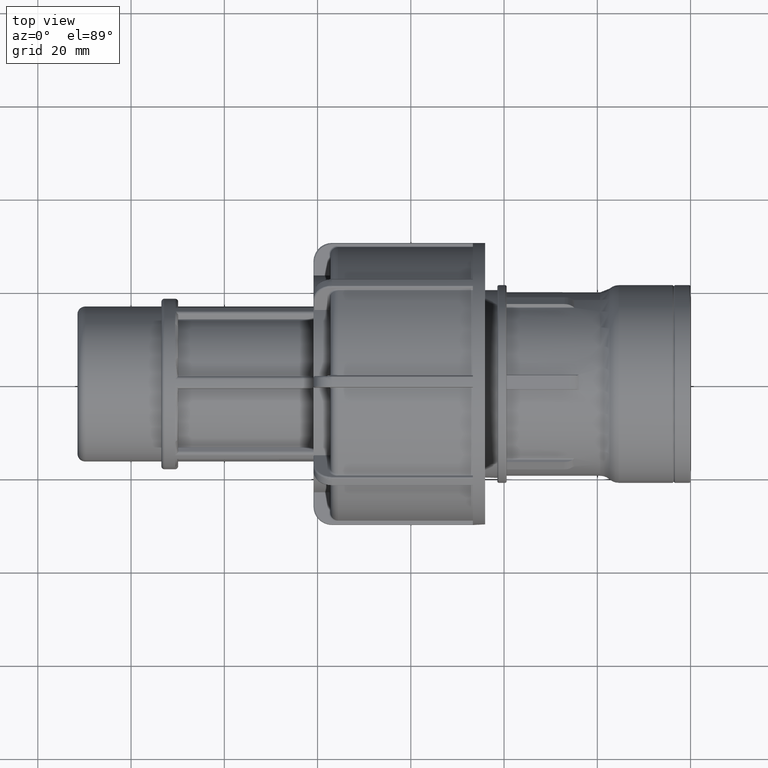
[diagram: clean part render]
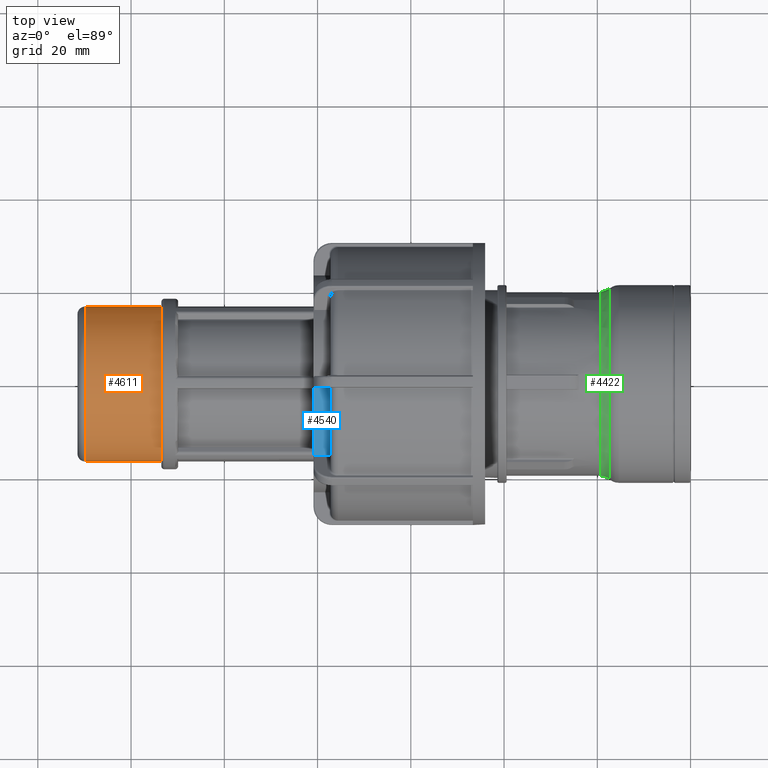
[diagram: same view with three faces highlighted in distinct colors, each labeled with its STEP entity id]
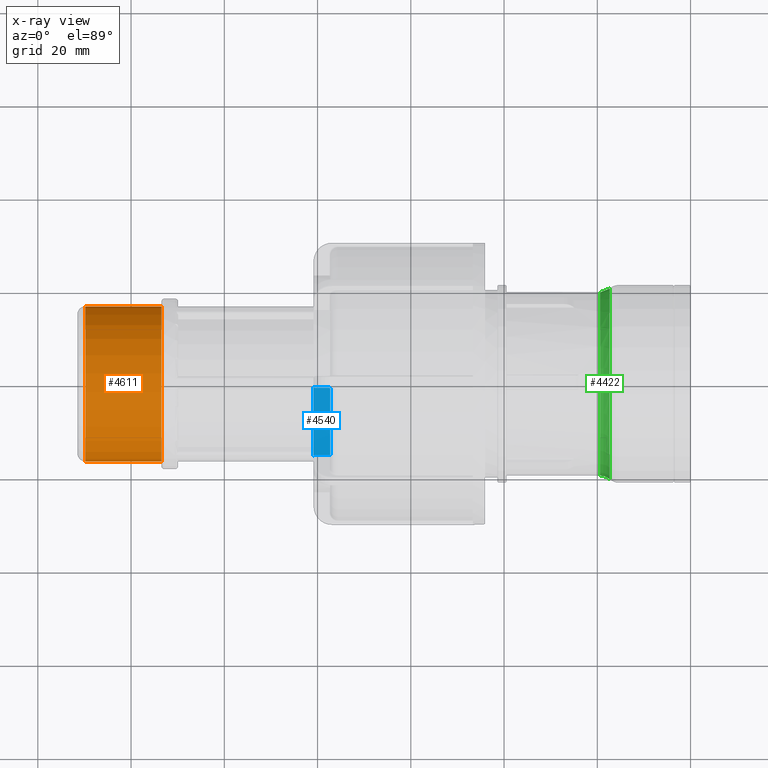
[diagram: x-ray of the same camera — body ghosted, the three highlighted faces saturated]
A machine part, top view with three faces highlighted in distinct colors.
The next image is the same camera in x-ray (body ghosted, the three faces saturated) — at least one of them is partly hidden behind the body in this view.
Their STEP definitions:

[orange] entity #4611 — the highlighted cylindrical surface (bore or boss wall) has radius 16.6245 mm, axis along (1, 0, 0).
#71=FACE_BOUND('',#1385,.T.);
#834=CYLINDRICAL_SURFACE('',#5100,16.6245);
#1096=FACE_OUTER_BOUND('',#1384,.T.);
#1384=EDGE_LOOP('',(#4298));
#1385=EDGE_LOOP('',(#4299));
#1584=CIRCLE('',#4676,16.6245);
#1806=CIRCLE('',#5097,16.6245);
#1878=VERTEX_POINT('',#6714);
#2257=VERTEX_POINT('',#9496);
#2348=EDGE_CURVE('',#1878,#1878,#1584,.T.);
#2944=EDGE_CURVE('',#2257,#2257,#1806,.T.);
#4298=ORIENTED_EDGE('',*,*,#2348,.F.);
#4299=ORIENTED_EDGE('',*,*,#2944,.F.);
#4611=ADVANCED_FACE('',(#1096,#71),#834,.T.);
#4676=AXIS2_PLACEMENT_3D('',#6715,#5258,#5259);
#5097=AXIS2_PLACEMENT_3D('',#9497,#6342,#6343);
#5100=AXIS2_PLACEMENT_3D('',#9501,#6348,#6349);
#5258=DIRECTION('center_axis',(1.,0.,0.));
#5259=DIRECTION('ref_axis',(0.,0.,-1.));
#6342=DIRECTION('center_axis',(-1.,0.,0.));
#6343=DIRECTION('ref_axis',(0.,-1.,1.83697019872103E-16));
#6348=DIRECTION('center_axis',(1.,0.,0.));
#6349=DIRECTION('ref_axis',(0.,1.,0.));
#6714=CARTESIAN_POINT('',(-113.5,16.6245,0.));
#6715=CARTESIAN_POINT('Origin',(-113.5,0.,0.));
#9496=CARTESIAN_POINT('',(-129.83755,16.6245,-5.08978517810629E-15));
#9497=CARTESIAN_POINT('Origin',(-129.83755,0.,0.));
#9501=CARTESIAN_POINT('Origin',(-122.5,0.,0.));

[blue] entity #4540 — the highlighted cylindrical surface (partial cylindrical patch) has radius 23.2743 mm, axis along (1, 0, 0).
#373=LINE('',#8634,#652);
#380=LINE('',#8799,#659);
#652=VECTOR('',#5988,2.99499999999998);
#659=VECTOR('',#6029,2.99499999999998);
#804=CYLINDRICAL_SURFACE('',#4985,23.2743);
#1025=FACE_OUTER_BOUND('',#1309,.T.);
#1309=EDGE_LOOP('',(#3942,#3943,#3944,#3945,#3946,#3947,#3948,#3949));
#1508=B_SPLINE_CURVE_WITH_KNOTS('',3,(#8444,#8445,#8446,#8447,#8448,#8449,
#8450,#8451,#8452,#8453),.UNSPECIFIED.,.F.,.F.,(4,2,2,2,4),(-0.0456019326035365,
-0.0341956466644442,-0.0227893607253519,-0.011394680362676,0.),
 .UNSPECIFIED.);
#1515=B_SPLINE_CURVE_WITH_KNOTS('',3,(#8565,#8566,#8567,#8568,#8569,#8570,
#8571,#8572,#8573,#8574),.UNSPECIFIED.,.F.,.F.,(4,2,2,2,4),(0.182511762510932,
0.193905036529118,0.205298310547305,0.216714869172378,0.228131427797452),
 .UNSPECIFIED.);
#1524=B_SPLINE_CURVE_WITH_KNOTS('',3,(#8752,#8753,#8754,#8755,#8756,#8757,
#8758,#8759,#8760,#8761),.UNSPECIFIED.,.F.,.F.,(4,2,2,2,4),(0.,0.011394680362676,
0.0227893607253519,0.0341956466644442,0.0456019326035365),.UNSPECIFIED.);
#1534=B_SPLINE_CURVE_WITH_KNOTS('',3,(#8952,#8953,#8954,#8955,#8956,#8957,
#8958,#8959,#8960,#8961),.UNSPECIFIED.,.F.,.F.,(4,2,2,2,4),(0.136892099002922,
0.148308657627996,0.159725216253069,0.171118490271256,0.182511764289442),
 .UNSPECIFIED.);
#1660=CIRCLE('',#4810,23.2743);
#1756=CIRCLE('',#4986,23.2743);
#2041=VERTEX_POINT('',#7454);
#2042=VERTEX_POINT('',#7456);
#2158=VERTEX_POINT('',#8442);
#2167=VERTEX_POINT('',#8563);
#2168=VERTEX_POINT('',#8564);
#2186=VERTEX_POINT('',#8751);
#2188=VERTEX_POINT('',#8798);
#2207=VERTEX_POINT('',#8951);
#2558=EDGE_CURVE('',#2042,#2041,#1660,.T.);
#2746=EDGE_CURVE('',#2158,#2041,#1508,.F.);
#2763=EDGE_CURVE('',#2167,#2168,#1515,.T.);
#2778=EDGE_CURVE('',#2158,#2167,#373,.T.);
#2796=EDGE_CURVE('',#2042,#2186,#1524,.F.);
#2801=EDGE_CURVE('',#2188,#2186,#380,.T.);
#2830=EDGE_CURVE('',#2207,#2188,#1534,.T.);
#2832=EDGE_CURVE('',#2207,#2168,#1756,.T.);
#3942=ORIENTED_EDGE('',*,*,#2763,.T.);
#3943=ORIENTED_EDGE('',*,*,#2832,.F.);
#3944=ORIENTED_EDGE('',*,*,#2830,.T.);
#3945=ORIENTED_EDGE('',*,*,#2801,.T.);
#3946=ORIENTED_EDGE('',*,*,#2796,.F.);
#3947=ORIENTED_EDGE('',*,*,#2558,.T.);
#3948=ORIENTED_EDGE('',*,*,#2746,.F.);
#3949=ORIENTED_EDGE('',*,*,#2778,.T.);
#4540=ADVANCED_FACE('',(#1025),#804,.T.);
#4810=AXIS2_PLACEMENT_3D('',#7457,#5620,#5621);
#4985=AXIS2_PLACEMENT_3D('',#8963,#6076,#6077);
#4986=AXIS2_PLACEMENT_3D('',#8964,#6078,#6079);
#5620=DIRECTION('center_axis',(1.,0.,0.));
#5621=DIRECTION('ref_axis',(0.,0.,-1.));
#5988=DIRECTION('',(1.,0.,0.));
#6029=DIRECTION('',(-1.,0.,0.));
#6076=DIRECTION('center_axis',(1.,0.,0.));
#6077=DIRECTION('ref_axis',(0.,1.,0.));
#6078=DIRECTION('center_axis',(1.,0.,0.));
#6079=DIRECTION('ref_axis',(0.,0.,-1.));
#7454=CARTESIAN_POINT('',(-80.8725,-15.8032007818451,17.0865995896987));
#7456=CARTESIAN_POINT('',(-80.8725,-0.907499999999987,23.2566008745904));
#7457=CARTESIAN_POINT('Origin',(-80.8725,0.,0.));
#8442=CARTESIAN_POINT('',(-80.57,-15.5795603694383,17.2907587799098));
#8444=CARTESIAN_POINT('Ctrl Pts',(-80.8725,-15.8032007818451,17.0865995896987));
#8445=CARTESIAN_POINT('Ctrl Pts',(-80.8725,-15.7752880711661,17.1124157369613));
#8446=CARTESIAN_POINT('Ctrl Pts',(-80.8649058906014,-15.7454441886019,17.1398780524631));
#8447=CARTESIAN_POINT('Ctrl Pts',(-80.8340217872633,-15.6904145381144,17.1902682926071));
#8448=CARTESIAN_POINT('Ctrl Pts',(-80.8107317891745,-15.6652323608994,17.2132001358695));
#8449=CARTESIAN_POINT('Ctrl Pts',(-80.7570099228712,-15.6254286393544,17.249340341117));
#8450=CARTESIAN_POINT('Ctrl Pts',(-80.7230060657535,-15.6081462859075,17.2649659346281));
#8451=CARTESIAN_POINT('Ctrl Pts',(-80.6484923621774,-15.5852101421508,17.2856733751171));
#8452=CARTESIAN_POINT('Ctrl Pts',(-80.6079822678756,-15.5795603694383,17.2907587799098));
#8453=CARTESIAN_POINT('Ctrl Pts',(-80.57,-15.5795603694383,17.2907587799098));
#8563=CARTESIAN_POINT('',(-77.575,-15.5795603694383,17.2907587799098));
#8564=CARTESIAN_POINT('',(-77.2725,-15.3531284361029,17.4921264491922));
#8565=CARTESIAN_POINT('Ctrl Pts',(-77.575,-15.5795603694383,17.2907587799098));
#8566=CARTESIAN_POINT('Ctrl Pts',(-77.5370224199394,-15.5795603694383,17.2907587799098));
#8567=CARTESIAN_POINT('Ctrl Pts',(-77.4965168711742,-15.5739173365345,17.2958485748498));
#8568=CARTESIAN_POINT('Ctrl Pts',(-77.4220123971191,-15.5509439198683,17.3165072208726));
#8569=CARTESIAN_POINT('Ctrl Pts',(-77.3880134742325,-15.5336099670924,17.3320721113624));
#8570=CARTESIAN_POINT('Ctrl Pts',(-77.3342742289143,-15.4935138512826,17.3679242794477));
#8571=CARTESIAN_POINT('Ctrl Pts',(-77.3109744983499,-15.4680640360845,17.3906132796097));
#8572=CARTESIAN_POINT('Ctrl Pts',(-77.2800877245088,-15.4121734480787,17.4401647031125));
#8573=CARTESIAN_POINT('Ctrl Pts',(-77.2725,-15.3817293517171,17.4670229529368));
#8574=CARTESIAN_POINT('Ctrl Pts',(-77.2725,-15.3531284361029,17.4921264491922));
#8634=CARTESIAN_POINT('',(-79.0725,-15.5795603694383,17.2907587799098));
#8751=CARTESIAN_POINT('',(-80.57,-1.20999999999999,23.2428255702701));
#8752=CARTESIAN_POINT('Ctrl Pts',(-80.57,-1.20999999999999,23.2428255702701));
#8753=CARTESIAN_POINT('Ctrl Pts',(-80.6079822678756,-1.20999999999999,23.2428255702701));
#8754=CARTESIAN_POINT('Ctrl Pts',(-80.6484923621774,-1.20240908318882,23.2432246386532));
#8755=CARTESIAN_POINT('Ctrl Pts',(-80.7230060657535,-1.17154840881345,23.2448005698471));
#8756=CARTESIAN_POINT('Ctrl Pts',(-80.7570099228712,-1.14827897636449,23.2459720760325));
#8757=CARTESIAN_POINT('Ctrl Pts',(-80.8107317891745,-1.09457851073959,23.2485625732495));
#8758=CARTESIAN_POINT('Ctrl Pts',(-80.8340217872633,-1.06055676058984,23.2501537996473));
#8759=CARTESIAN_POINT('Ctrl Pts',(-80.8649058906014,-0.986013641052393,
23.2534343581618));
#8760=CARTESIAN_POINT('Ctrl Pts',(-80.8725,-0.945492039795946,23.2551183803815));
#8761=CARTESIAN_POINT('Ctrl Pts',(-80.8725,-0.907499999999987,23.2566008745904));
#8798=CARTESIAN_POINT('',(-77.575,-1.20999999999999,23.2428255702701));
#8799=CARTESIAN_POINT('',(-79.0725,-1.20999999999999,23.2428255702701));
#8951=CARTESIAN_POINT('',(-77.2725,-1.51249999999999,23.2251024591927));
#8952=CARTESIAN_POINT('Ctrl Pts',(-77.2725,-1.51249999999999,23.2251024591927));
#8953=CARTESIAN_POINT('Ctrl Pts',(-77.2725,-1.47452524618731,23.227575508138));
#8954=CARTESIAN_POINT('Ctrl Pts',(-77.2800877245088,-1.43400636862133,23.2301110845408));
#8955=CARTESIAN_POINT('Ctrl Pts',(-77.3109744983499,-1.35944760726169,23.2345935507479));
#8956=CARTESIAN_POINT('Ctrl Pts',(-77.3342742289143,-1.32540832448229,23.2365457417816));
#8957=CARTESIAN_POINT('Ctrl Pts',(-77.3880134742325,-1.2717047779206,23.2395466659966));
#8958=CARTESIAN_POINT('Ctrl Pts',(-77.4220123971191,-1.2484417827542,23.2407975819354));
#8959=CARTESIAN_POINT('Ctrl Pts',(-77.4965168711742,-1.21758925534968,23.2424343719543));
#8960=CARTESIAN_POINT('Ctrl Pts',(-77.5370224199394,-1.20999999999999,23.2428255702701));
#8961=CARTESIAN_POINT('Ctrl Pts',(-77.575,-1.20999999999999,23.2428255702701));
#8963=CARTESIAN_POINT('Origin',(-79.0725,0.,0.));
#8964=CARTESIAN_POINT('Origin',(-77.2725,0.,0.));

[green] entity #4422 — the highlighted toroidal blend (fillet) surface has major radius 22.7183 mm and minor (blend) radius 3.0291 mm.
#55=FACE_BOUND('',#1180,.T.);
#907=FACE_OUTER_BOUND('',#1179,.T.);
#1179=EDGE_LOOP('',(#3344));
#1180=EDGE_LOOP('',(#3345));
#1609=CIRCLE('',#4710,19.68915);
#1620=CIRCLE('',#4756,20.446425);
#1951=VERTEX_POINT('',#6986);
#1975=VERTEX_POINT('',#7258);
#2434=EDGE_CURVE('',#1951,#1951,#1609,.T.);
#2487=EDGE_CURVE('',#1975,#1975,#1620,.T.);
#3344=ORIENTED_EDGE('',*,*,#2434,.T.);
#3345=ORIENTED_EDGE('',*,*,#2487,.T.);
#4333=TOROIDAL_SURFACE('',#4755,22.71825,3.0291);
#4422=ADVANCED_FACE('',(#907,#55),#4333,.F.);
#4710=AXIS2_PLACEMENT_3D('',#6987,#5365,#5366);
#4755=AXIS2_PLACEMENT_3D('',#7257,#5483,#5484);
#4756=AXIS2_PLACEMENT_3D('',#7259,#5485,#5486);
#5365=DIRECTION('center_axis',(1.,0.,0.));
#5366=DIRECTION('ref_axis',(0.,1.,-6.12323399573677E-17));
#5483=DIRECTION('center_axis',(1.,0.,0.));
#5484=DIRECTION('ref_axis',(0.,0.,-1.));
#5485=DIRECTION('center_axis',(-1.,0.,0.));
#5486=DIRECTION('ref_axis',(0.,1.,-6.12323399573677E-17));
#6986=CARTESIAN_POINT('',(-19.3838450975694,-19.68915,-1.20561272627161E-15));
#6987=CARTESIAN_POINT('Origin',(-19.3838450975694,0.,0.));
#7257=CARTESIAN_POINT('Origin',(-19.3838450975694,0.,0.));
#7258=CARTESIAN_POINT('',(-17.380283773483,-20.446425,3.75594733953846E-15));
#7259=CARTESIAN_POINT('Origin',(-17.380283773483,0.,0.));